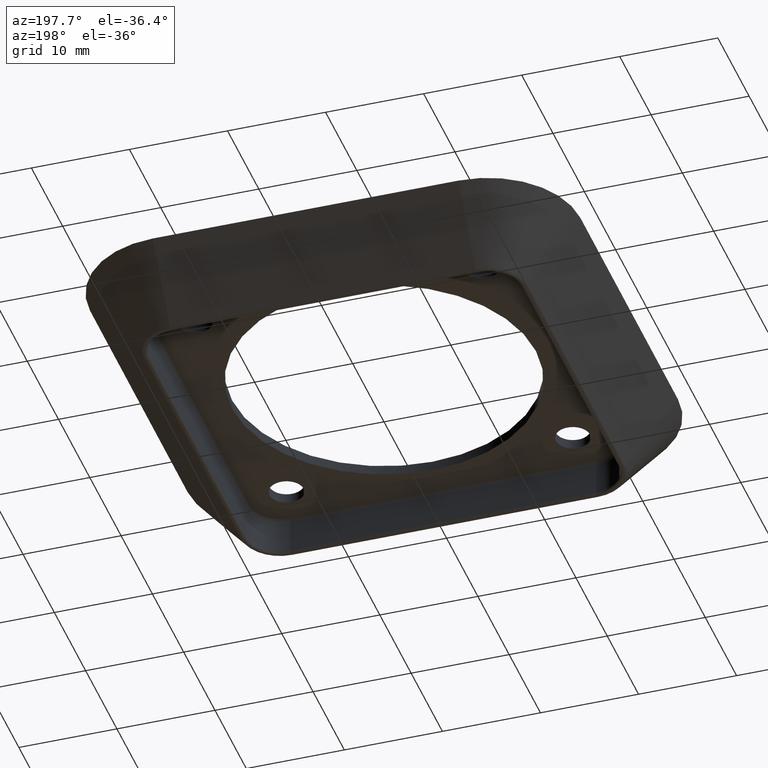
[diagram: clean part render]
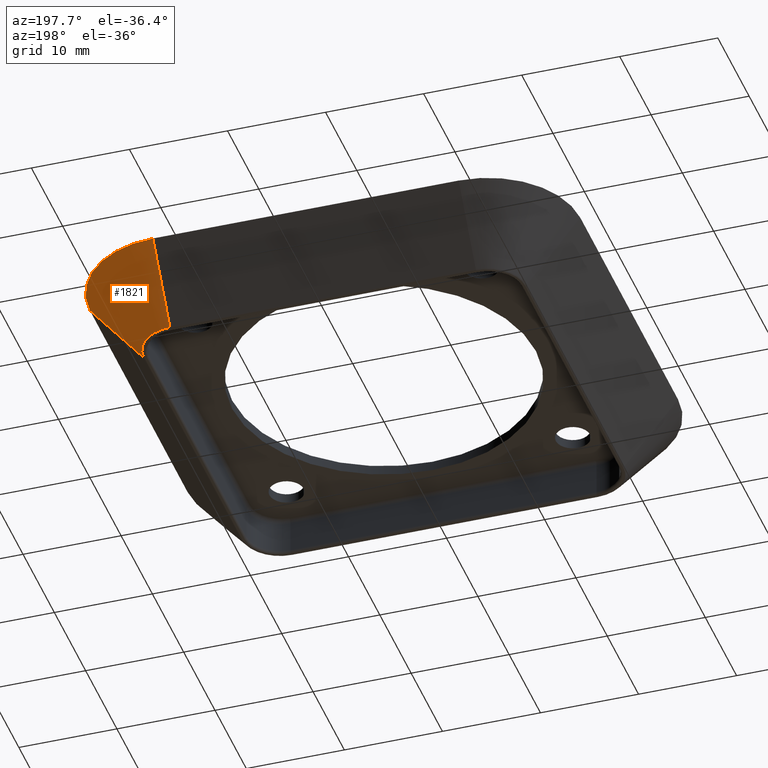
[diagram: same view with one face highlighted and labeled with its STEP entity id]
A machine part, auxiliary view. The second image highlights one B-rep face of the part: STEP entity #1821.
In plain terms, the highlighted conical surface has half-angle 38.435 deg.
Its self-contained STEP definition (entity closure, byte-faithful):
#448=DIRECTION('',(0.E0,-6.216257031183E-1,-7.833144229636E-1));
#449=VECTOR('',#448,8.791473141630E0);
#450=CARTESIAN_POINT('',(1.56E1,2.5E1,3.E0));
#451=LINE('',#450,#449);
#524=DIRECTION('',(-6.216257031183E-1,0.E0,-7.833144229636E-1));
#525=VECTOR('',#524,8.791473141630E0);
#526=CARTESIAN_POINT('',(2.5E1,1.56E1,3.E0));
#527=LINE('',#526,#525);
#528=CARTESIAN_POINT('',(1.56E1,1.56E1,3.E0));
#529=DIRECTION('',(0.E0,0.E0,1.E0));
#530=DIRECTION('',(1.E0,0.E0,0.E0));
#531=AXIS2_PLACEMENT_3D('',#528,#529,#530);
#792=CARTESIAN_POINT('',(1.56E1,1.56E1,-3.886487710935E0));
#793=DIRECTION('',(0.E0,0.E0,1.E0));
#794=DIRECTION('',(1.E0,0.E0,0.E0));
#795=AXIS2_PLACEMENT_3D('',#792,#793,#794);
#861=CARTESIAN_POINT('',(2.5E1,1.56E1,3.E0));
#862=CARTESIAN_POINT('',(1.953499432689E1,1.56E1,-3.886487710935E0));
#863=VERTEX_POINT('',#861);
#864=VERTEX_POINT('',#862);
#865=CARTESIAN_POINT('',(1.56E1,2.5E1,3.E0));
#866=CARTESIAN_POINT('',(1.56E1,1.953499432689E1,-3.886487710935E0));
#867=VERTEX_POINT('',#865);
#868=VERTEX_POINT('',#866);
#1808=CARTESIAN_POINT('',(1.56E1,1.56E1,-4.432438554677E-1));
#1809=DIRECTION('',(0.E0,0.E0,1.E0));
#1810=DIRECTION('',(-1.E0,0.E0,0.E0));
#1811=AXIS2_PLACEMENT_3D('',#1808,#1809,#1810);
#1812=CONICAL_SURFACE('',#1811,6.667497163445E0,3.843494935942E1);
#1814=ORIENTED_EDGE('',*,*,#1813,.F.);
#1815=ORIENTED_EDGE('',*,*,#1803,.T.);
#1816=ORIENTED_EDGE('',*,*,#1692,.T.);
#1818=ORIENTED_EDGE('',*,*,#1817,.F.);
#1819=EDGE_LOOP('',(#1814,#1815,#1816,#1818));
#1820=FACE_OUTER_BOUND('',#1819,.F.);
#1821=ADVANCED_FACE('',(#1820),#1812,.T.);
#532=CIRCLE('',#531,9.4E0);
#796=CIRCLE('',#795,3.934994326889E0);
#1692=EDGE_CURVE('',#867,#868,#451,.T.);
#1803=EDGE_CURVE('',#863,#867,#532,.T.);
#1813=EDGE_CURVE('',#863,#864,#527,.T.);
#1817=EDGE_CURVE('',#864,#868,#796,.T.);